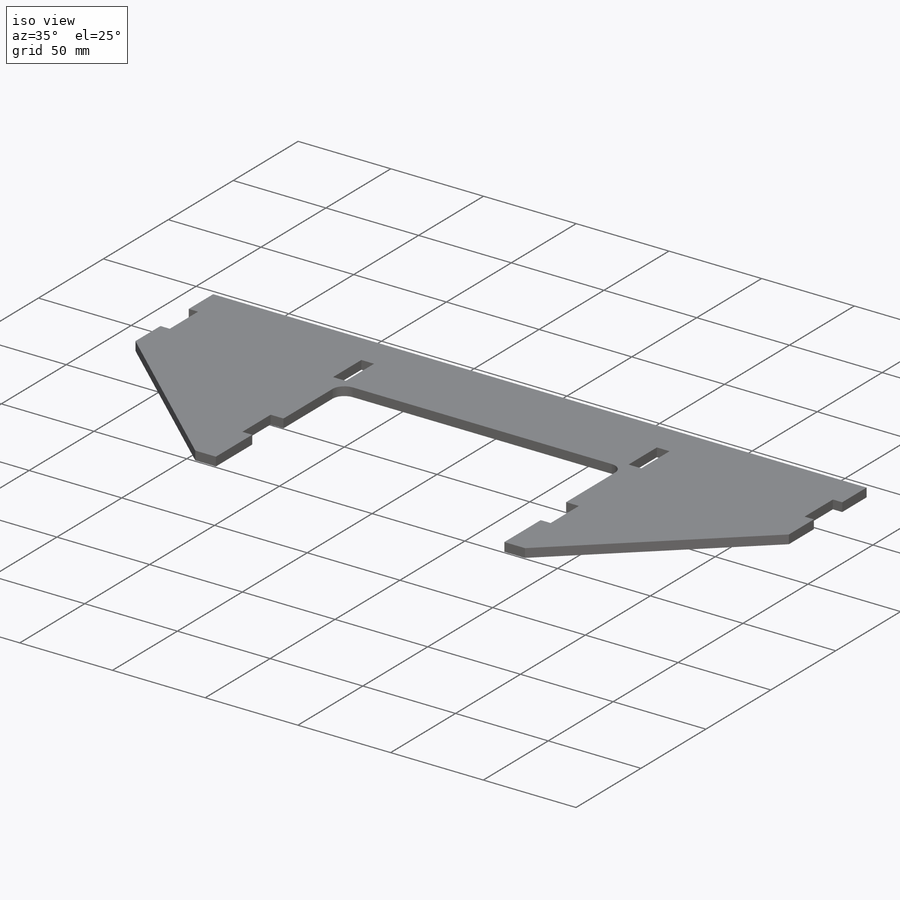
[diagram: iso view]
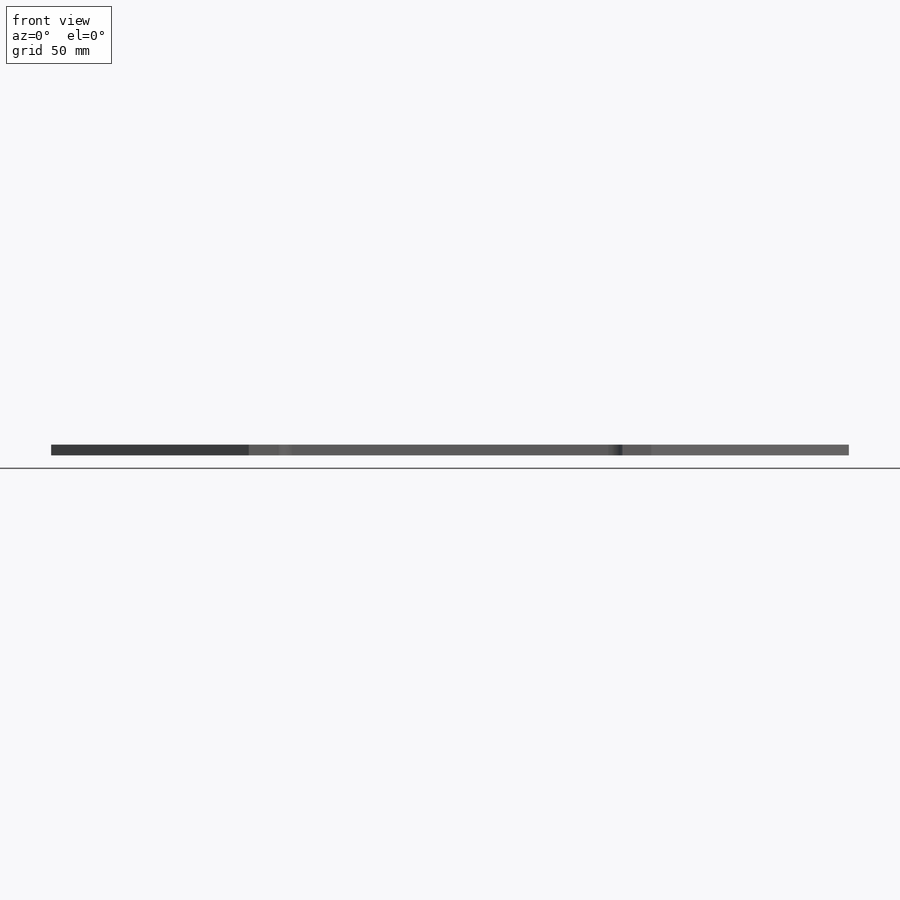
[diagram: front view]
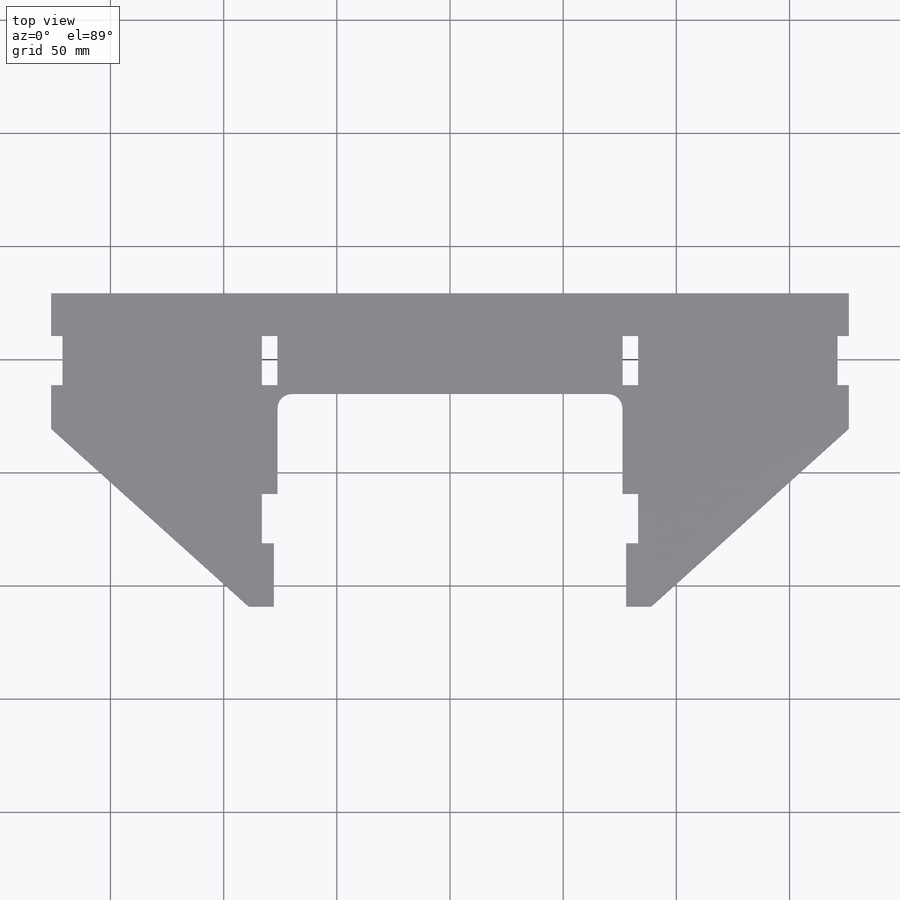
[diagram: top view]
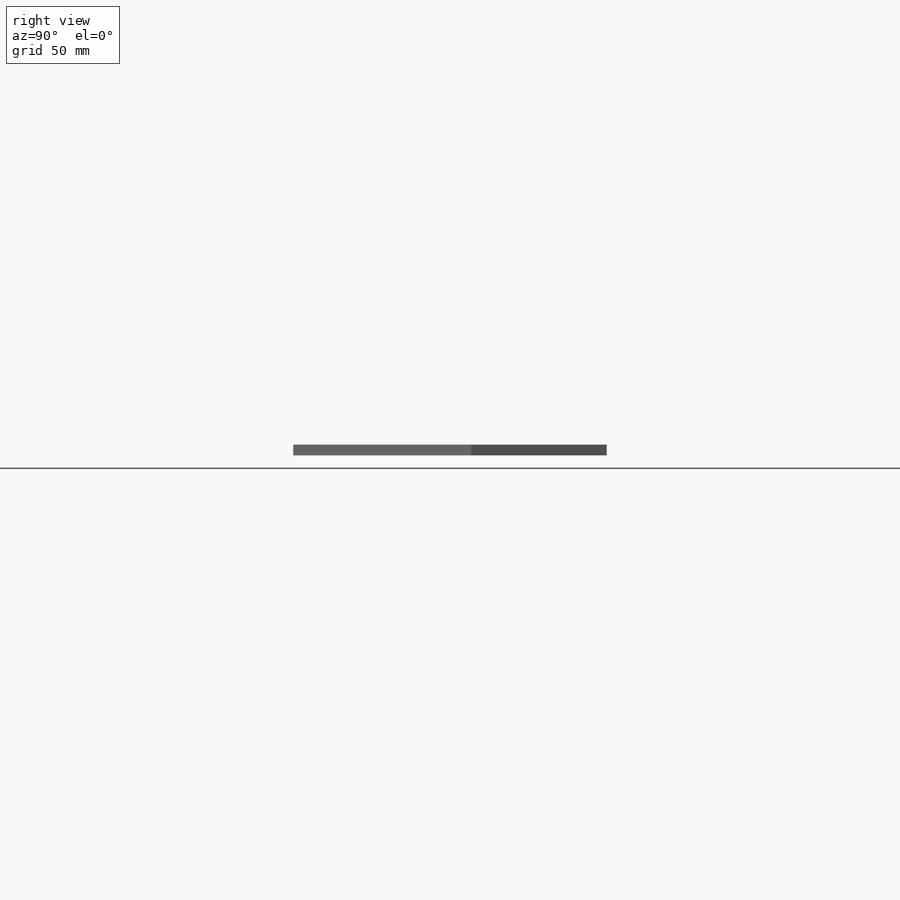
[diagram: right view]
SOLIDWORKS PART (.sldprt)
format: sldprt  version: not decoded by parser v0  size: 441,856 bytes
history: native  units: mm
features: sketch x8, cut_extrude x5, extrude x3, fillet x2, material x1 (+13 scaffold rows collapsed)
feature tree (32):
  scaffold x13  (default folders/planes/origin — collapsed)
  material  "Plain Carbon Steel"
  sketch  "Sketch1"  dims[D1=177.8mm D2=29.21mm]
  extrude  "Boss-Extrude1"  Depth=4.7625mm
  sketch  "Sketch2"
  extrude  "Boss-Extrude2"  Depth=4.7625mm
  fillet  "Fillet1"  Radius=3.175mm
  sketch  "Sketch3"  dims[c1.D1=~42.197482mm c1.D2=~31.402777mm c2.D1=~21.298929mm c2.D2=6.35mm c3.D1=~21.298929mm c3.D2=6.35mm c4.D1=~21.298929mm c4.D2=6.35mm c5.D1=~21.298929mm c5.D2=6.35mm c6.D1=~21.298929mm c6.D2=6.35mm c7.D1=~21.298929mm c7.D2=6.35mm c8.D1=0.254mm]
  cut_extrude  "Cut-Extrude1"  [1 undecoded]
  sketch  "Sketch4"  dims[c1.D1=~17.348592mm c1.D2=1.5875mm c1.D3=1.5875mm c2.D1=0.0mm]
  cut_extrude  "Cut-Extrude2"  [1 undecoded]
  sketch  "Sketch5"  dims[D3=~3.659883mm D1=0.0mm D2=1.5875mm]
  cut_extrude  "Cut-Extrude3"  [1 undecoded]
  sketch  "Sketch6"  dims[c1.D1=~21.806929mm c1.D2=~2.09272mm c2.D1=~21.806929mm c2.D2=~1.751218mm c3.D1=152.527mm]
  extrude  "Boss-Extrude3"  [1 undecoded]
  sketch  "Sketch7"  dims[c1.D1=~27.391182mm c1.D2=~19.842998mm c2.D1=~24.739641mm c2.D2=~7.795915mm c3.D1=~29.858646mm c3.D2=~12.747091mm c4.D1=~27.391182mm c4.D2=~6.373546mm c5.D1=6.858mm]
  cut_extrude  "Cut-Extrude4"  [1 undecoded]
  sketch  "Sketch8"  dims[c1.D1=~17.436636mm c1.D2=152.4mm c2.D1=44.45mm]
  cut_extrude  "Cut-Extrude5"  [1 undecoded]
  fillet  "Fillet2"  Radius=6.35mm
decode coverage: 11 of 18 modeling features carry decoded parameters
note: ~ marks probable driven/reference dimensions
note: 6 parameter values undecoded
summary: no parameter record found for 6 features
note: suppression state not decoded; provenance and decode notes live in map.json
